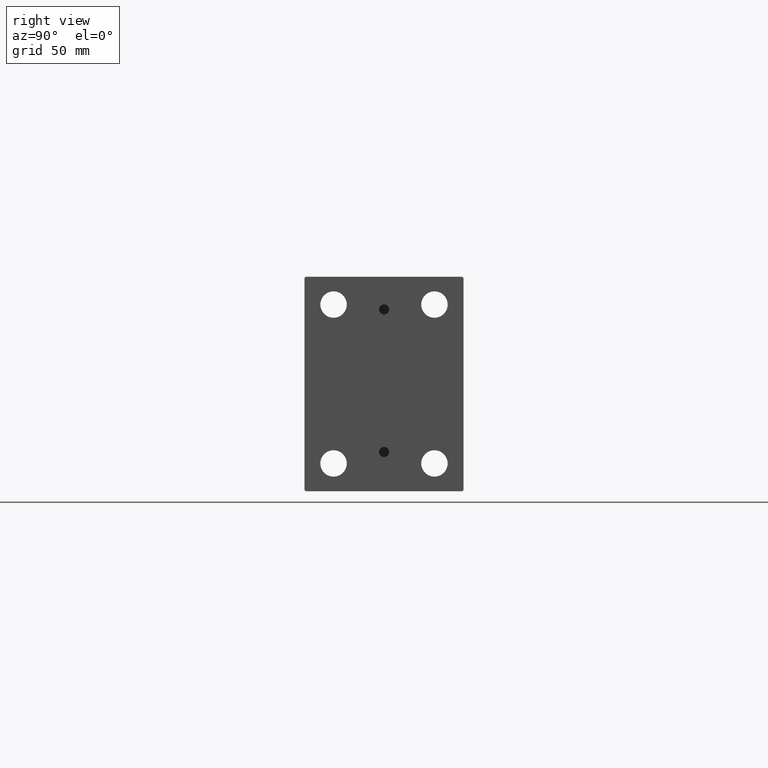
[diagram: clean part render]
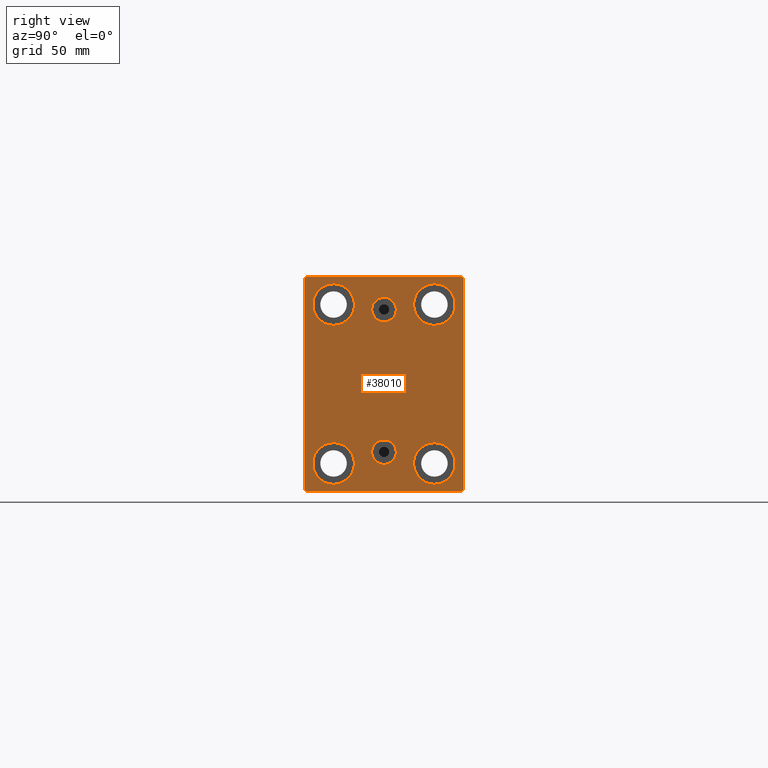
[diagram: same view with one face highlighted and labeled with its STEP entity id]
A machine part, right view. The second image highlights one B-rep face of the part: STEP entity #38010.
In plain terms, the highlighted planar face has unit normal (1, 0, 0).
Its self-contained STEP definition (entity closure, byte-faithful):
#226 = CARTESIAN_POINT ( 'NONE',  ( 223.0000000000000000, -20.00000000000000355, -31.49999999999999289 ) ) ;
#748 = VERTEX_POINT ( 'NONE', #43890 ) ;
#982 = ORIENTED_EDGE ( 'NONE', *, *, #17749, .F. ) ;
#1308 = AXIS2_PLACEMENT_3D ( 'NONE', #22727, #5029, #22268 ) ;
#1781 = EDGE_CURVE ( 'NONE', #18640, #12496, #43897, .T. ) ;
#1922 = CARTESIAN_POINT ( 'NONE',  ( 223.0000000000000000, 20.00000000000000355, 31.50000000000000000 ) ) ;
#1938 = VERTEX_POINT ( 'NONE', #7794 ) ;
#2401 = ORIENTED_EDGE ( 'NONE', *, *, #22784, .T. ) ;
#2586 = CARTESIAN_POINT ( 'NONE',  ( 223.0000000000000000, -36.75000000000044054, -36.74999999999941735 ) ) ;
#2596 = CIRCLE ( 'NONE', #13492, 8.249999999999992895 ) ;
#2622 = CARTESIAN_POINT ( 'NONE',  ( 223.0000000000000000, 20.00000000000000355, 23.25000000000000355 ) ) ;
#3141 = DIRECTION ( 'NONE',  ( 0.000000000000000000, 0.000000000000000000, 1.000000000000000000 ) ) ;
#3519 = DIRECTION ( 'NONE',  ( -1.000000000000000000, -0.000000000000000000, -0.000000000000000000 ) ) ;
#3562 = AXIS2_PLACEMENT_3D ( 'NONE', #31034, #31720, #10119 ) ;
#3663 = VECTOR ( 'NONE', #37190, 1000.000000000000114 ) ;
#4093 = AXIS2_PLACEMENT_3D ( 'NONE', #41182, #6703, #20732 ) ;
#4359 = AXIS2_PLACEMENT_3D ( 'NONE', #24434, #6958, #20990 ) ;
#4649 = DIRECTION ( 'NONE',  ( 0.000000000000000000, 0.000000000000000000, 1.000000000000000000 ) ) ;
#4965 = CIRCLE ( 'NONE', #16708, 4.859999999999995879 ) ;
#4996 = DIRECTION ( 'NONE',  ( -1.000000000000000000, -0.000000000000000000, -0.000000000000000000 ) ) ;
#5029 = DIRECTION ( 'NONE',  ( 1.000000000000000000, 0.000000000000000000, -0.000000000000000000 ) ) ;
#5230 = VERTEX_POINT ( 'NONE', #33420 ) ;
#5579 = DIRECTION ( 'NONE',  ( -1.000000000000000000, -0.000000000000000000, -0.000000000000000000 ) ) ;
#5841 = FACE_BOUND ( 'NONE', #13224, .T. ) ;
#6043 = LINE ( 'NONE', #20063, #9849 ) ;
#6062 = EDGE_CURVE ( 'NONE', #7637, #30082, #6043, .T. ) ;
#6134 = CARTESIAN_POINT ( 'NONE',  ( 223.0000000000000000, 36.74999999999957367, -36.75000000000059686 ) ) ;
#6334 = EDGE_CURVE ( 'NONE', #20394, #37736, #28255, .T. ) ;
#6377 = ORIENTED_EDGE ( 'NONE', *, *, #35378, .T. ) ;
#6455 = CIRCLE ( 'NONE', #3562, 4.859999999999999432 ) ;
#6467 = AXIS2_PLACEMENT_3D ( 'NONE', #6654, #37670, #27807 ) ;
#6654 = CARTESIAN_POINT ( 'NONE',  ( 223.0000000000000000, 20.00000000000000355, 31.50000000000000000 ) ) ;
#6670 = ORIENTED_EDGE ( 'NONE', *, *, #15924, .T. ) ;
#6703 = DIRECTION ( 'NONE',  ( -1.000000000000000000, -0.000000000000000000, -0.000000000000000000 ) ) ;
#6898 = ORIENTED_EDGE ( 'NONE', *, *, #25380, .F. ) ;
#6958 = DIRECTION ( 'NONE',  ( -1.000000000000000000, -0.000000000000000000, -0.000000000000000000 ) ) ;
#7173 = VERTEX_POINT ( 'NONE', #25270 ) ;
#7409 = CARTESIAN_POINT ( 'NONE',  ( 223.0000000000000000, 3.306546357697852550E-15, -26.99999999999998934 ) ) ;
#7637 = VERTEX_POINT ( 'NONE', #40114 ) ;
#7794 = CARTESIAN_POINT ( 'NONE',  ( 223.0000000000000000, -2.976515330312223011E-15, 34.36000000000000654 ) ) ;
#7808 = ORIENTED_EDGE ( 'NONE', *, *, #6334, .T. ) ;
#8146 = EDGE_CURVE ( 'NONE', #37299, #24459, #2596, .T. ) ;
#8789 = LINE ( 'NONE', #2586, #35951 ) ;
#9076 = AXIS2_PLACEMENT_3D ( 'NONE', #11882, #4996, #39679 ) ;
#9356 = CIRCLE ( 'NONE', #1308, 4.859999999999995879 ) ;
#9432 = CARTESIAN_POINT ( 'NONE',  ( 223.0000000000000000, -20.00000000000000355, -39.74999999999999289 ) ) ;
#9583 = CARTESIAN_POINT ( 'NONE',  ( 223.0000000000000000, -19.99999999999999645, 23.25000000000000355 ) ) ;
#9686 = CARTESIAN_POINT ( 'NONE',  ( 223.0000000000000000, 3.901724702083465828E-15, -22.13999999999999346 ) ) ;
#9818 = VERTEX_POINT ( 'NONE', #36127 ) ;
#9849 = VECTOR ( 'NONE', #10828, 999.9999999999998863 ) ;
#10002 = CARTESIAN_POINT ( 'NONE',  ( 223.0000000000000000, -19.99999999999999645, 31.50000000000000000 ) ) ;
#10044 = VERTEX_POINT ( 'NONE', #9686 ) ;
#10119 = DIRECTION ( 'NONE',  ( 0.000000000000000000, 0.000000000000000000, -1.000000000000000000 ) ) ;
#10554 = EDGE_LOOP ( 'NONE', ( #15307, #37628, #23771, #19600, #7808, #13554, #6670, #19311 ) ) ;
#10705 = ORIENTED_EDGE ( 'NONE', *, *, #8146, .T. ) ;
#10828 = DIRECTION ( 'NONE',  ( -0.000000000000000000, -0.7071067811865376918, 0.7071067811865574537 ) ) ;
#10980 = CARTESIAN_POINT ( 'NONE',  ( 223.0000000000000000, -31.00000000000000000, -42.50000000000000711 ) ) ;
#11074 = ORIENTED_EDGE ( 'NONE', *, *, #26853, .T. ) ;
#11563 = EDGE_LOOP ( 'NONE', ( #10705, #11749 ) ) ;
#11636 = AXIS2_PLACEMENT_3D ( 'NONE', #16982, #44989, #41544 ) ;
#11688 = CIRCLE ( 'NONE', #24918, 8.249999999999992895 ) ;
#11749 = ORIENTED_EDGE ( 'NONE', *, *, #12425, .T. ) ;
#11882 = CARTESIAN_POINT ( 'NONE',  ( 223.0000000000000000, 19.99999999999999645, -31.49999999999999289 ) ) ;
#12425 = EDGE_CURVE ( 'NONE', #24459, #37299, #18754, .T. ) ;
#12476 = EDGE_LOOP ( 'NONE', ( #14751, #24075 ) ) ;
#12496 = VERTEX_POINT ( 'NONE', #14953 ) ;
#12878 = CARTESIAN_POINT ( 'NONE',  ( 223.0000000000000000, -31.50000000000000000, 42.49999999999999289 ) ) ;
#13178 = FACE_BOUND ( 'NONE', #12476, .T. ) ;
#13224 = EDGE_LOOP ( 'NONE', ( #21333, #982 ) ) ;
#13291 = CARTESIAN_POINT ( 'NONE',  ( 223.0000000000000000, 31.50000000000000000, 42.50000000000000711 ) ) ;
#13492 = AXIS2_PLACEMENT_3D ( 'NONE', #10002, #45151, #3141 ) ;
#13554 = ORIENTED_EDGE ( 'NONE', *, *, #36353, .T. ) ;
#13732 = LINE ( 'NONE', #13291, #35881 ) ;
#13822 = EDGE_LOOP ( 'NONE', ( #11074, #6377 ) ) ;
#14456 = DIRECTION ( 'NONE',  ( 0.000000000000000000, 1.000000000000000000, 0.000000000000000000 ) ) ;
#14529 = DIRECTION ( 'NONE',  ( 1.000000000000000000, 0.000000000000000000, -0.000000000000000000 ) ) ;
#14751 = ORIENTED_EDGE ( 'NONE', *, *, #18772, .T. ) ;
#14953 = CARTESIAN_POINT ( 'NONE',  ( 223.0000000000000000, 20.00000000000000355, 39.74999999999999289 ) ) ;
#15307 = ORIENTED_EDGE ( 'NONE', *, *, #44660, .T. ) ;
#15924 = EDGE_CURVE ( 'NONE', #24354, #7637, #34658, .T. ) ;
#16306 = CARTESIAN_POINT ( 'NONE',  ( 223.0000000000000000, -36.74999999999997868, 36.74999999999997868 ) ) ;
#16382 = DIRECTION ( 'NONE',  ( 0.000000000000000000, 0.000000000000000000, 1.000000000000000000 ) ) ;
#16638 = FACE_BOUND ( 'NONE', #11563, .T. ) ;
#16708 = AXIS2_PLACEMENT_3D ( 'NONE', #7409, #14529, #4649 ) ;
#16939 = LINE ( 'NONE', #6134, #20819 ) ;
#16982 = CARTESIAN_POINT ( 'NONE',  ( 223.0000000000000000, -3.571693674697836683E-15, 29.50000000000001066 ) ) ;
#17749 = EDGE_CURVE ( 'NONE', #10044, #9818, #9356, .T. ) ;
#17867 = CIRCLE ( 'NONE', #9076, 8.250000000000000000 ) ;
#18640 = VERTEX_POINT ( 'NONE', #2622 ) ;
#18754 = CIRCLE ( 'NONE', #4093, 8.249999999999992895 ) ;
#18772 = EDGE_CURVE ( 'NONE', #43454, #5230, #24781, .T. ) ;
#18915 = AXIS2_PLACEMENT_3D ( 'NONE', #28999, #3519, #21662 ) ;
#19311 = ORIENTED_EDGE ( 'NONE', *, *, #6062, .T. ) ;
#19600 = ORIENTED_EDGE ( 'NONE', *, *, #29984, .T. ) ;
#20063 = CARTESIAN_POINT ( 'NONE',  ( 223.0000000000000000, 36.75000000000044054, 36.74999999999941735 ) ) ;
#20086 = FACE_BOUND ( 'NONE', #13822, .T. ) ;
#20394 = VERTEX_POINT ( 'NONE', #10980 ) ;
#20732 = DIRECTION ( 'NONE',  ( 0.000000000000000000, 0.000000000000000000, 1.000000000000000000 ) ) ;
#20819 = VECTOR ( 'NONE', #34610, 999.9999999999998863 ) ;
#20990 = DIRECTION ( 'NONE',  ( 0.000000000000000000, 0.000000000000000000, 1.000000000000000000 ) ) ;
#21333 = ORIENTED_EDGE ( 'NONE', *, *, #40721, .F. ) ;
#21662 = DIRECTION ( 'NONE',  ( 0.000000000000000000, 0.000000000000000000, 1.000000000000000000 ) ) ;
#22268 = DIRECTION ( 'NONE',  ( 0.000000000000000000, 0.000000000000000000, 1.000000000000000000 ) ) ;
#22727 = CARTESIAN_POINT ( 'NONE',  ( 223.0000000000000000, 3.306546357697852550E-15, -26.99999999999998934 ) ) ;
#22766 = VERTEX_POINT ( 'NONE', #33381 ) ;
#22784 = EDGE_CURVE ( 'NONE', #12496, #18640, #11688, .T. ) ;
#23238 = ORIENTED_EDGE ( 'NONE', *, *, #41905, .F. ) ;
#23306 = FACE_OUTER_BOUND ( 'NONE', #10554, .T. ) ;
#23535 = PLANE ( 'NONE',  #43031 ) ;
#23771 = ORIENTED_EDGE ( 'NONE', *, *, #43371, .T. ) ;
#24075 = ORIENTED_EDGE ( 'NONE', *, *, #31303, .T. ) ;
#24116 = DIRECTION ( 'NONE',  ( -1.000000000000000000, -0.000000000000000000, -0.000000000000000000 ) ) ;
#24149 = CIRCLE ( 'NONE', #4359, 8.250000000000000000 ) ;
#24330 = DIRECTION ( 'NONE',  ( 0.000000000000000000, -1.632680918566406300E-16, 1.000000000000000000 ) ) ;
#24354 = VERTEX_POINT ( 'NONE', #26134 ) ;
#24434 = CARTESIAN_POINT ( 'NONE',  ( 223.0000000000000000, 19.99999999999999645, -31.49999999999999289 ) ) ;
#24459 = VERTEX_POINT ( 'NONE', #25169 ) ;
#24529 = EDGE_LOOP ( 'NONE', ( #43241, #2401 ) ) ;
#24781 = CIRCLE ( 'NONE', #18915, 8.250000000000000000 ) ;
#24918 = AXIS2_PLACEMENT_3D ( 'NONE', #1922, #5579, #16382 ) ;
#25169 = CARTESIAN_POINT ( 'NONE',  ( 223.0000000000000000, -19.99999999999999645, 39.74999999999999289 ) ) ;
#25270 = CARTESIAN_POINT ( 'NONE',  ( 223.0000000000000000, -30.99999999999997158, 42.49999999999999289 ) ) ;
#25380 = EDGE_CURVE ( 'NONE', #37695, #1938, #31465, .T. ) ;
#25907 = EDGE_LOOP ( 'NONE', ( #6898, #23238 ) ) ;
#26134 = CARTESIAN_POINT ( 'NONE',  ( 223.0000000000000000, 31.50000000000001421, -42.00000000000000711 ) ) ;
#26853 = EDGE_CURVE ( 'NONE', #748, #27368, #24149, .T. ) ;
#27223 = CARTESIAN_POINT ( 'NONE',  ( 223.0000000000000000, 0.000000000000000000, 0.000000000000000000 ) ) ;
#27333 = DIRECTION ( 'NONE',  ( 0.000000000000000000, -1.000000000000000000, -2.202823461557850341E-16 ) ) ;
#27368 = VERTEX_POINT ( 'NONE', #29535 ) ;
#27807 = DIRECTION ( 'NONE',  ( 0.000000000000000000, 0.000000000000000000, 1.000000000000000000 ) ) ;
#28255 = LINE ( 'NONE', #35366, #31898 ) ;
#28891 = CARTESIAN_POINT ( 'NONE',  ( 223.0000000000000000, -3.571693674697836683E-15, 24.64000000000001123 ) ) ;
#28999 = CARTESIAN_POINT ( 'NONE',  ( 223.0000000000000000, -20.00000000000000355, -31.49999999999999289 ) ) ;
#29105 = VERTEX_POINT ( 'NONE', #33948 ) ;
#29535 = CARTESIAN_POINT ( 'NONE',  ( 223.0000000000000000, 19.99999999999999645, -23.24999999999999289 ) ) ;
#29984 = EDGE_CURVE ( 'NONE', #22766, #20394, #8789, .T. ) ;
#30082 = VERTEX_POINT ( 'NONE', #38157 ) ;
#30870 = FACE_BOUND ( 'NONE', #24529, .T. ) ;
#31034 = CARTESIAN_POINT ( 'NONE',  ( 223.0000000000000000, -3.571693674697836683E-15, 29.50000000000001066 ) ) ;
#31303 = EDGE_CURVE ( 'NONE', #5230, #43454, #33787, .T. ) ;
#31447 = CARTESIAN_POINT ( 'NONE',  ( 223.0000000000000000, 31.50000000000001421, -42.50000000000000711 ) ) ;
#31465 = CIRCLE ( 'NONE', #11636, 4.859999999999999432 ) ;
#31716 = LINE ( 'NONE', #16306, #3663 ) ;
#31720 = DIRECTION ( 'NONE',  ( 1.000000000000000000, 0.000000000000000000, 0.000000000000000000 ) ) ;
#31898 = VECTOR ( 'NONE', #14456, 1000.000000000000000 ) ;
#33381 = CARTESIAN_POINT ( 'NONE',  ( 223.0000000000000000, -31.50000000000000000, -41.99999999999999289 ) ) ;
#33420 = CARTESIAN_POINT ( 'NONE',  ( 223.0000000000000000, -20.00000000000000355, -23.24999999999999289 ) ) ;
#33659 = VECTOR ( 'NONE', #37679, 1000.000000000000000 ) ;
#33787 = CIRCLE ( 'NONE', #39655, 8.250000000000000000 ) ;
#33948 = CARTESIAN_POINT ( 'NONE',  ( 223.0000000000000000, -31.50000000000000000, 41.99999999999996447 ) ) ;
#34610 = DIRECTION ( 'NONE',  ( -0.000000000000000000, 0.7071067811865574537, 0.7071067811865376918 ) ) ;
#34658 = LINE ( 'NONE', #31447, #37878 ) ;
#35366 = CARTESIAN_POINT ( 'NONE',  ( 223.0000000000000000, -31.50000000000000000, -42.50000000000000711 ) ) ;
#35378 = EDGE_CURVE ( 'NONE', #27368, #748, #17867, .T. ) ;
#35881 = VECTOR ( 'NONE', #27333, 1000.000000000000000 ) ;
#35951 = VECTOR ( 'NONE', #37707, 999.9999999999998863 ) ;
#36127 = CARTESIAN_POINT ( 'NONE',  ( 223.0000000000000000, 3.306546357697852550E-15, -31.85999999999998522 ) ) ;
#36353 = EDGE_CURVE ( 'NONE', #37736, #24354, #16939, .T. ) ;
#36899 = CARTESIAN_POINT ( 'NONE',  ( 223.0000000000000000, 31.00000000000000000, -42.50000000000000711 ) ) ;
#37190 = DIRECTION ( 'NONE',  ( 0.000000000000000000, -0.7071067811865474617, -0.7071067811865474617 ) ) ;
#37299 = VERTEX_POINT ( 'NONE', #9583 ) ;
#37628 = ORIENTED_EDGE ( 'NONE', *, *, #45435, .T. ) ;
#37670 = DIRECTION ( 'NONE',  ( -1.000000000000000000, -0.000000000000000000, -0.000000000000000000 ) ) ;
#37679 = DIRECTION ( 'NONE',  ( 0.000000000000000000, 0.000000000000000000, -1.000000000000000000 ) ) ;
#37695 = VERTEX_POINT ( 'NONE', #28891 ) ;
#37707 = DIRECTION ( 'NONE',  ( -0.000000000000000000, 0.7071067811865376918, -0.7071067811865574537 ) ) ;
#37736 = VERTEX_POINT ( 'NONE', #36899 ) ;
#37878 = VECTOR ( 'NONE', #24330, 1000.000000000000000 ) ;
#37881 = DIRECTION ( 'NONE',  ( 0.000000000000000000, 0.000000000000000000, 1.000000000000000000 ) ) ;
#38010 = ADVANCED_FACE ( 'NONE', ( #44420, #5841, #20086, #16638, #30870, #13178, #23306 ), #23535, .T. ) ;
#38157 = CARTESIAN_POINT ( 'NONE',  ( 223.0000000000000000, 31.00000000000000000, 42.50000000000000711 ) ) ;
#39655 = AXIS2_PLACEMENT_3D ( 'NONE', #226, #24116, #37881 ) ;
#39679 = DIRECTION ( 'NONE',  ( 0.000000000000000000, 0.000000000000000000, 1.000000000000000000 ) ) ;
#40114 = CARTESIAN_POINT ( 'NONE',  ( 223.0000000000000000, 31.50000000000000000, 41.99999999999999289 ) ) ;
#40531 = DIRECTION ( 'NONE',  ( 1.000000000000000000, 0.000000000000000000, 0.000000000000000000 ) ) ;
#40721 = EDGE_CURVE ( 'NONE', #9818, #10044, #4965, .T. ) ;
#41182 = CARTESIAN_POINT ( 'NONE',  ( 223.0000000000000000, -19.99999999999999645, 31.50000000000000000 ) ) ;
#41544 = DIRECTION ( 'NONE',  ( 0.000000000000000000, 0.000000000000000000, -1.000000000000000000 ) ) ;
#41905 = EDGE_CURVE ( 'NONE', #1938, #37695, #6455, .T. ) ;
#43031 = AXIS2_PLACEMENT_3D ( 'NONE', #27223, #40531, #44873 ) ;
#43241 = ORIENTED_EDGE ( 'NONE', *, *, #1781, .T. ) ;
#43371 = EDGE_CURVE ( 'NONE', #29105, #22766, #45247, .T. ) ;
#43454 = VERTEX_POINT ( 'NONE', #9432 ) ;
#43890 = CARTESIAN_POINT ( 'NONE',  ( 223.0000000000000000, 19.99999999999999645, -39.74999999999999289 ) ) ;
#43897 = CIRCLE ( 'NONE', #6467, 8.249999999999992895 ) ;
#44420 = FACE_BOUND ( 'NONE', #25907, .T. ) ;
#44660 = EDGE_CURVE ( 'NONE', #30082, #7173, #13732, .T. ) ;
#44873 = DIRECTION ( 'NONE',  ( 0.000000000000000000, 0.000000000000000000, -1.000000000000000000 ) ) ;
#44989 = DIRECTION ( 'NONE',  ( 1.000000000000000000, 0.000000000000000000, 0.000000000000000000 ) ) ;
#45151 = DIRECTION ( 'NONE',  ( -1.000000000000000000, -0.000000000000000000, -0.000000000000000000 ) ) ;
#45247 = LINE ( 'NONE', #12878, #33659 ) ;
#45435 = EDGE_CURVE ( 'NONE', #7173, #29105, #31716, .T. ) ;